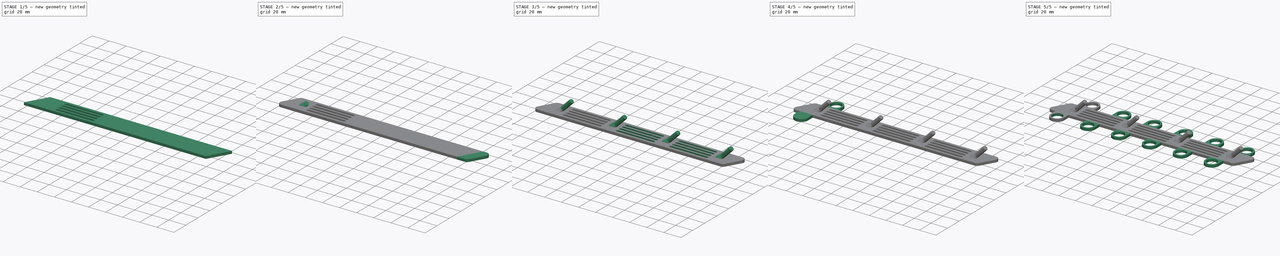
[diagram: build sequence overview — one tinted view per stage of 5, left to right]
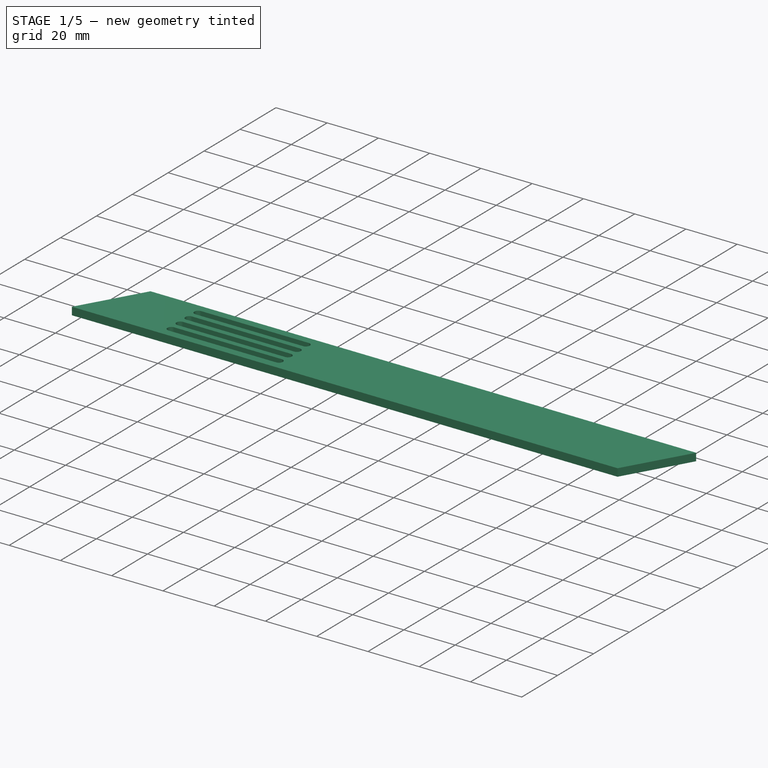
[diagram: stage 1 of 5 — iso view after this stage's code; geometry added in this stage tinted green]
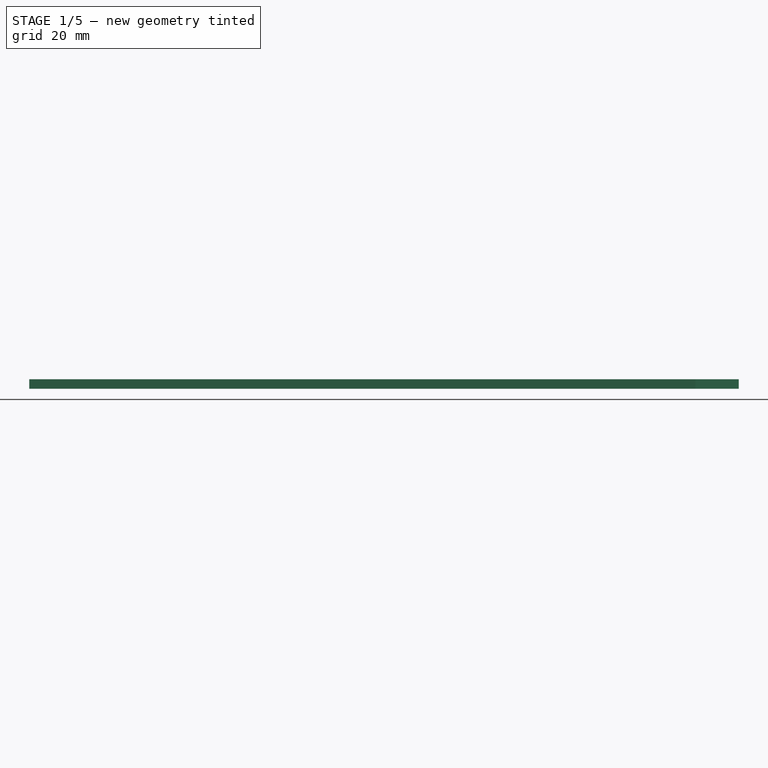
[diagram: stage 1 of 5 — front view after this stage's code; geometry added in this stage tinted green]
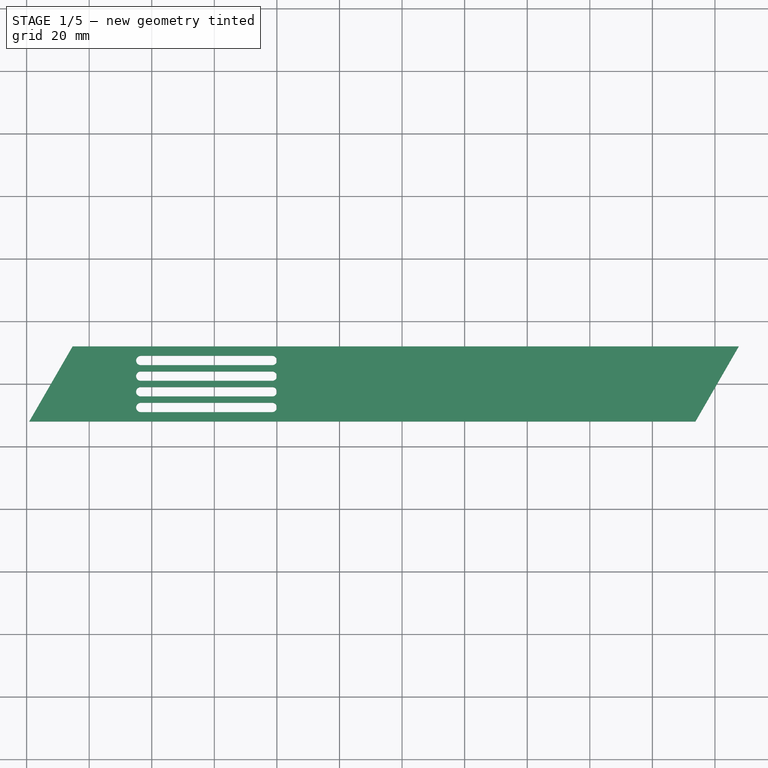
[diagram: stage 1 of 5 — top view after this stage's code; geometry added in this stage tinted green]
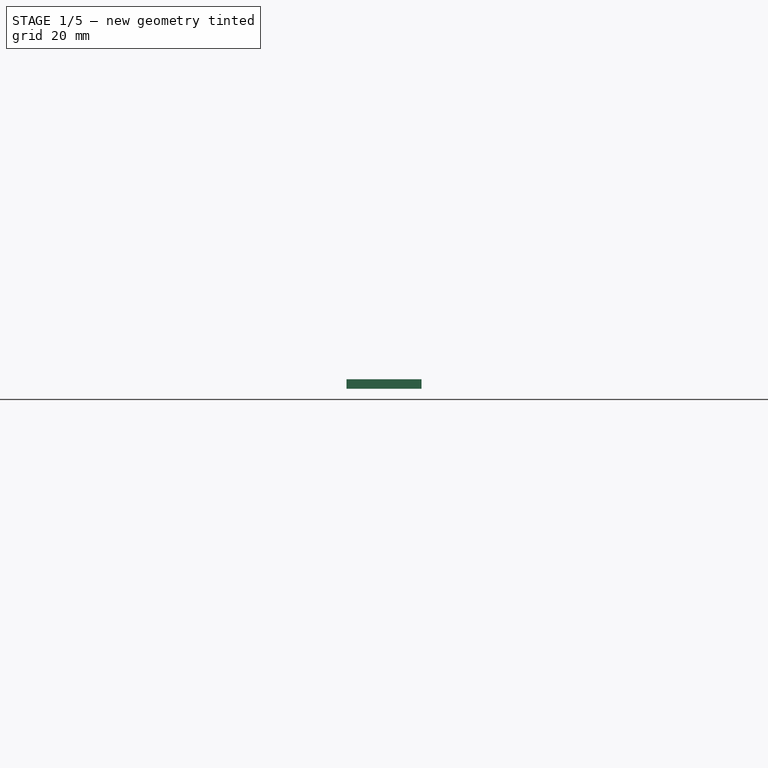
[diagram: stage 1 of 5 — right view after this stage's code; geometry added in this stage tinted green]
FCSTD DOCUMENT  (FreeCAD 0.19R24366 (Git))
Label: utensil-fridge-mount-v2
License: All rights reserved
LicenseURL: http://en.wikipedia.org/wiki/All_rights_reserved
objects: Sketcher::SketchObject×9, PartDesign::Pad×6, PartDesign::LinearPattern×4, PartDesign::Pocket×3, PartDesign::Fillet×2, Spreadsheet::Sheet×1, PartDesign::Plane×1, PartDesign::AdditiveLoft×1, PartDesign::Body×1, App::Part×1
note: 39 computed .brp shape members not serialized (recipe doc carries the construction recipe); baked Part::Feature solids carry a one-line shape summary decoded from their .brp

FEATURE [Spreadsheet::Sheet] Spreadsheet  label="$params"
  cells = A1=real; G1=computed; A2=peg_distance; B2(peg_distance)=60; C2=mount_angle; D2(mount_angle)=30; G2=mount_int_length; H2(mount_int_length)==(peg_distance + peg_diam / 2) * (peg_count - 1); A3=peg_diam; B3(peg_diam)=5; C3=mount_height; D3(mount_height)=24; G3=grill_hori_size; H3(grill_hori_size)==peg_distance * grill_percent; A4=peg_count; B4(peg_count)=4; C4=mount_thickness; D4(mount_thickness)=3; G4=magnet_full_diam; H4(magnet_full_diam)==magnet_diam + magnet_pad * 2; A5=peg_ext_size; B5(peg_ext_size)=15; C5=mount_hori_pad; D5(mount_hori_pad)=10; A6=peg_angle; B6(peg_angle)=45; A7=peg_base_diam; B7(peg_base_diam)=9; C7=magnet_diam; D7(magnet_diam)=12; C8=magnet_pad; D8(magnet_pad)=2; A9=grill_spacing; B9(grill_spacing)=2; C9=magnet_count; D9(magnet_count)=6; A10=grill_percent; B10(grill_percent)=0.7; A11=grill_cut_size; B11(grill_cut_size)=3; C11=magnet_surface_pad; D11(magnet_surface_pad)=0.4
FEATURE [Sketcher::SketchObject] Sketch  label="Main Body Sketch"
  FullyConstrained = true
  MapMode = 5
  Support = -> [XY_Plane001]
  expr: Constraints[8] = <<$params>>.mount_int_length
  expr: Constraints[9] = <<$params>>.mount_height
  expr: Constraints[18] = <<$params>>.mount_angle
  sketch-geometry (8):
    g0: LineSegment StartX=-93.75 StartY=12 StartZ=0 EndX=93.75 EndY=12 EndZ=0
    g1: LineSegment StartX=93.75 StartY=12 StartZ=0 EndX=93.75 EndY=-12 EndZ=0
    g2: LineSegment StartX=93.75 StartY=-12 StartZ=0 EndX=-93.75 EndY=-12 EndZ=0
    g3: LineSegment StartX=-93.75 StartY=-12 StartZ=0 EndX=-93.75 EndY=12 EndZ=0
    g4: LineSegment StartX=-93.75 StartY=12 StartZ=0 EndX=-107.606 EndY=-12 EndZ=0
    g5: LineSegment StartX=-107.606 StartY=-12 StartZ=0 EndX=-93.75 EndY=-12 EndZ=0
    g6: LineSegment StartX=93.75 StartY=-12 StartZ=0 EndX=107.606 EndY=12 EndZ=0
    g7: LineSegment StartX=107.606 StartY=12 StartZ=0 EndX=93.75 EndY=12 EndZ=0
  constraints (20):
    c: Coincident(g0,g1)
    c: Coincident(g1,g2)
    c: Coincident(g2,g3)
    c: Coincident(g3,g0)
    c: Horizontal(g2)
    c: Vertical(g1)
    c: Symmetric(g0,g2,g-1)
    c: Symmetric(g0,g0,g-2)
    c: DistanceX(g0,g0) = 187.5
    c: DistanceY(g3,g3) = 24
    c: Coincident(g4,g0)
    c: Coincident(g5,g4)
    c: Coincident(g5,g2)
    c: Horizontal(g5)
    c: Coincident(g6,g1)
    c: Coincident(g7,g6)
    c: Coincident(g7,g0)
    c: Horizontal(g7)
    c: Angle(g4,g3) = 0.523599
    c: Equal(g6,g4)
FEATURE [PartDesign::Pad] Pad  label="Main Body Pad"
  Direction = (1,1,1)
  Length = 3
  Length2 = 100
  Profile = -> Sketch
  Type = 0
  expr: Length = <<$params>>.mount_thickness
FEATURE [Sketcher::SketchObject] Sketch004  label="Prime Grill Cut Sketch"
  ExternalGeometry = -> [Sketch]
  FullyConstrained = true
  MapMode = 5
  Placement = pos=(0,0,3) rot=(0,0,1;0rad)
  Support = -> [Pad]
  expr: Constraints[77] = <<$params>>.grill_hori_size
  expr: Constraints[9] = <<$params>>.peg_distance + <<$params>>.peg_diam / 2
  expr: Constraints[50] = <<$params>>.grill_spacing
  expr: Constraints[53] = <<$params>>.grill_cut_size
  sketch-geometry (34):
    g0: LineSegment StartX=-93.75 StartY=12 StartZ=0 EndX=-31.25 EndY=12 EndZ=0
    g1: LineSegment StartX=-31.25 StartY=12 StartZ=0 EndX=-31.25 EndY=-12 EndZ=0
    g2: LineSegment StartX=-31.25 StartY=-12 StartZ=0 EndX=-93.75 EndY=-12 EndZ=0
    g3: LineSegment StartX=-93.75 StartY=-12 StartZ=0 EndX=-93.75 EndY=12 EndZ=0
    g4: ArcOfCircle CenterX=-83.5 CenterY=7.5 CenterZ=0 NormalX=0 NormalY=0 NormalZ=1 AngleXU=0 Radius=1.5 StartAngle=1.5708 EndAngle=4.71239
    g5: ArcOfCircle CenterX=-41.5 CenterY=7.5 CenterZ=0 NormalX=0 NormalY=0 NormalZ=1 AngleXU=0 Radius=1.5 StartAngle=4.71239 EndAngle=7.85398
    g6: LineSegment StartX=-83.5 StartY=6 StartZ=0 EndX=-41.5 EndY=6 EndZ=0
    g7: LineSegment StartX=-83.5 StartY=9 StartZ=0 EndX=-41.5 EndY=9 EndZ=0
    g8: ArcOfCircle CenterX=-83.5 CenterY=2.5 CenterZ=0 NormalX=0 NormalY=0 NormalZ=1 AngleXU=0 Radius=1.5 StartAngle=1.5708 EndAngle=4.71239
    g9: ArcOfCircle CenterX=-41.5 CenterY=2.5 CenterZ=0 NormalX=0 NormalY=0 NormalZ=1 AngleXU=0 Radius=1.5 StartAngle=4.71239 EndAngle=7.85398
    g10: LineSegment StartX=-83.5 StartY=1 StartZ=0 EndX=-41.5 EndY=1 EndZ=0
    g11: LineSegment StartX=-83.5 StartY=4 StartZ=0 EndX=-41.5 EndY=4 EndZ=0
    g12: ArcOfCircle CenterX=-83.5 CenterY=-2.5 CenterZ=0 NormalX=0 NormalY=0 NormalZ=1 AngleXU=0 Radius=1.5 StartAngle=1.5708 EndAngle=4.71239
    g13: ArcOfCircle CenterX=-41.5 CenterY=-2.5 CenterZ=0 NormalX=0 NormalY=0 NormalZ=1 AngleXU=0 Radius=1.5 StartAngle=4.71239 EndAngle=7.85398
    g14: LineSegment StartX=-83.5 StartY=-4 StartZ=0 EndX=-41.5 EndY=-4 EndZ=0
    g15: LineSegment StartX=-83.5 StartY=-1 StartZ=0 EndX=-41.5 EndY=-1 EndZ=0
    g16: ArcOfCircle CenterX=-83.5 CenterY=-7.5 CenterZ=0 NormalX=0 NormalY=0 NormalZ=1 AngleXU=0 Radius=1.5 StartAngle=1.5708 EndAngle=4.71239
    g17: ArcOfCircle CenterX=-41.5 CenterY=-7.5 CenterZ=0 NormalX=0 NormalY=0 NormalZ=1 AngleXU=0 Radius=1.5 StartAngle=4.71239 EndAngle=7.85398
    g18: LineSegment StartX=-83.5 StartY=-9 StartZ=0 EndX=-41.5 EndY=-9 EndZ=0
    g19: LineSegment StartX=-83.5 StartY=-6 StartZ=0 EndX=-41.5 EndY=-6 EndZ=0
    g20: LineSegment StartX=-83.5 StartY=-6 StartZ=0 EndX=-83.5 EndY=-4 EndZ=0
    g21: LineSegment StartX=-83.5 StartY=-1 StartZ=0 EndX=-83.5 EndY=1 EndZ=0
    g22: LineSegment StartX=-83.5 StartY=4 StartZ=0 EndX=-83.5 EndY=6 EndZ=0
    g23: LineSegment StartX=-41.5 StartY=4 StartZ=0 EndX=-41.5 EndY=6 EndZ=0
    g24: LineSegment StartX=-41.5 StartY=-1 StartZ=0 EndX=-41.5 EndY=1 EndZ=0
    g25: LineSegment StartX=-41.5 StartY=-6 StartZ=0 EndX=-41.5 EndY=-4 EndZ=0
    g26: LineSegment StartX=-41.5 StartY=4 StartZ=0 EndX=-41.5 EndY=1 EndZ=0
    g27: LineSegment StartX=-41.5 StartY=-6 StartZ=0 EndX=-41.5 EndY=-9 EndZ=0
    g28: LineSegment StartX=-41.5 StartY=6 StartZ=0 EndX=-41.5 EndY=9 EndZ=0
    g29: LineSegment StartX=-41.5 StartY=-1 StartZ=0 EndX=-41.5 EndY=-4 EndZ=0
    g30: LineSegment StartX=-83.5 StartY=9 StartZ=0 EndX=-62.5 EndY=0 EndZ=0
    g31: LineSegment StartX=-62.5 StartY=8e-16 StartZ=0 EndX=-41.5 EndY=-9 EndZ=0
    g32: LineSegment StartX=-93.75 StartY=-12 StartZ=0 EndX=-62.5 EndY=0 EndZ=0
    g33: LineSegment StartX=-62.5 StartY=8e-16 StartZ=0 EndX=-31.25 EndY=12 EndZ=0
  constraints (78):
    c: Coincident(g0,g1)
    c: Coincident(g1,g2)
    c: Coincident(g2,g3)
    c: Coincident(g3,g0)
    c: Horizontal(g0)
    c: Horizontal(g2)
    c: Vertical(g1)
    c: Coincident(g0,g-3)
    c: Coincident(g2,g-4)
    c: DistanceX(g0,g0) = 62.5
    c: Tangent(g4,g7) = 1.5708
    c: Tangent(g4,g6) = -1.5708
    c: Tangent(g6,g5) = -1.5708
    c: Tangent(g7,g5) = 1.5708
    c: Horizontal(g6)
    c: Equal(g4,g5)
    c: Tangent(g8,g11) = 1.5708
    c: Tangent(g8,g10) = -1.5708
    c: Tangent(g10,g9) = -1.5708
    c: Tangent(g11,g9) = 1.5708
    c: Horizontal(g10)
    c: Equal(g8,g9)
    c: Tangent(g12,g15) = 1.5708
    c: Tangent(g12,g14) = -1.5708
    c: Tangent(g14,g13) = -1.5708
    c: Tangent(g15,g13) = 1.5708
    c: Horizontal(g14)
    c: Equal(g12,g13)
    c: Tangent(g16,g19) = 1.5708
    c: Tangent(g16,g18) = -1.5708
    c: Tangent(g18,g17) = -1.5708
    c: Tangent(g19,g17) = 1.5708
    c: Horizontal(g18)
    c: Equal(g16,g17)
    c: Coincident(g20,g16)
    c: Coincident(g20,g12)
    c: Vertical(g20)
    c: Coincident(g21,g12)
    c: Coincident(g21,g8)
    c: Coincident(g22,g8)
    c: Coincident(g22,g4)
    c: Vertical(g22)
    c: Coincident(g23,g9)
    c: Coincident(g23,g5)
    c: Coincident(g24,g13)
    c: Coincident(g24,g9)
    c: Vertical(g24)
    c: Coincident(g25,g17)
    c: Coincident(g25,g13)
    c: Vertical(g25)
    c: DistanceY(g21,g21) = 2
    c: Equal(g22,g21)
    c: Equal(g21,g20)
    c: DistanceY(g5,g5) = 3
    c: Vertical(g23)
    c: Coincident(g26,g9)
    c: Coincident(g26,g9)
    c: Coincident(g27,g17)
    c: Coincident(g27,g17)
    c: Coincident(g28,g5)
    c: Coincident(g28,g5)
    c: Equal(g28,g26)
    c: Equal(g26,g27)
    c: Coincident(g29,g13)
    c: Coincident(g29,g13)
    c: Equal(g28,g29)
    c: Symmetric(g12,g8,g-1)
    c: Coincident(g30,g4)
    c: Coincident(g31,g30)
    c: Coincident(g31,g17)
    c: Equal(g31,g30)
    c: Parallel(g31,g30)
    c: Coincident(g32,g2)
    c: Coincident(g33,g32)
    c: Coincident(g33,g0)
    c: Equal(g32,g33)
    c: Coincident(g32,g30)
    c: DistanceX(g12,g13) = 42
FEATURE [PartDesign::Pocket] Pocket  label="Prime Grill Cut Pocket"
  BaseFeature = -> Pad
  Length = 5
  Length2 = 100
  Profile = -> Sketch004
  Type = 1
FEATURE [PartDesign::Pad] Pad001  label="Main Body End Pad 001"
  BaseFeature = -> Pocket
  Direction = (1,0,0)
  Length = 10
  Length2 = 100
  Profile = -> Pad [Face1]
  Reversed = true
  Type = 0
  UseCustomVector = true
  expr: Length = <<$params>>.mount_hori_pad
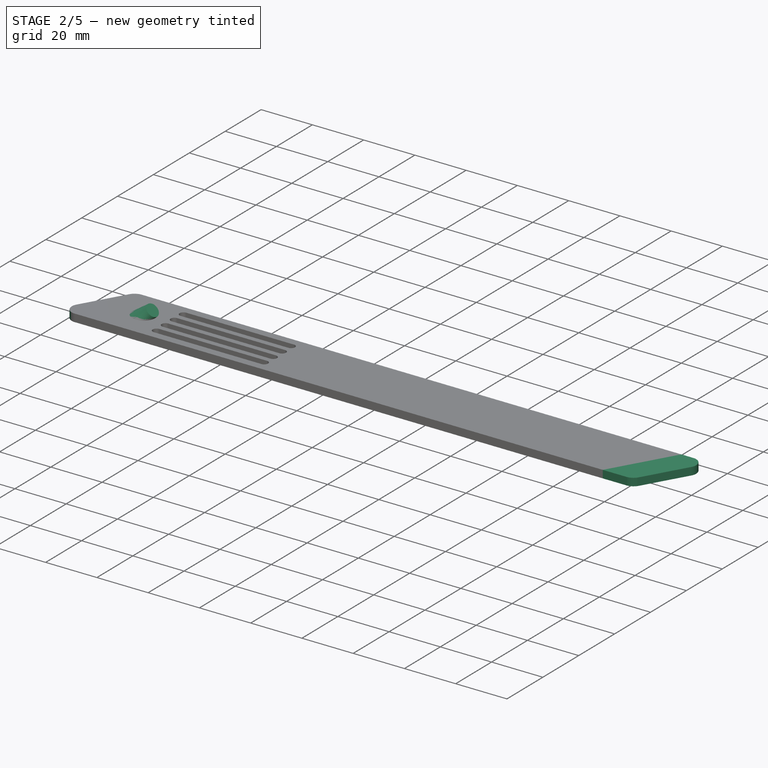
[diagram: stage 2 of 5 — iso view after this stage's code; geometry added in this stage tinted green]
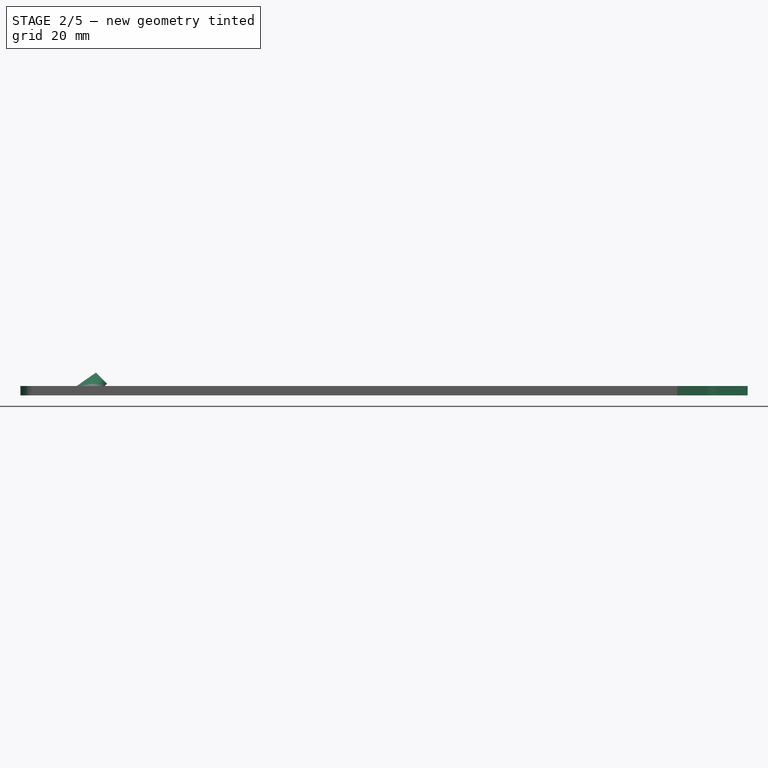
[diagram: stage 2 of 5 — front view after this stage's code; geometry added in this stage tinted green]
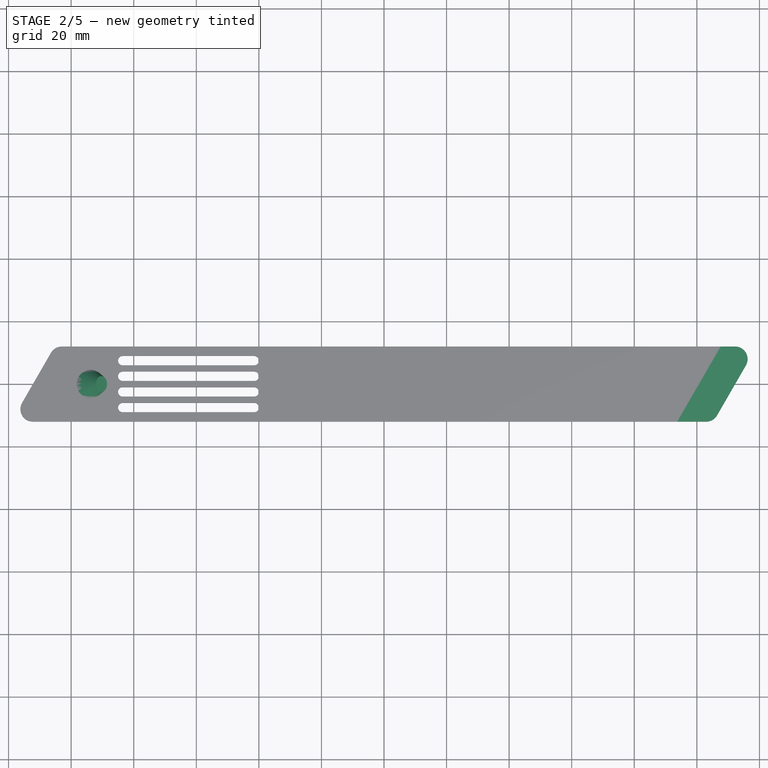
[diagram: stage 2 of 5 — top view after this stage's code; geometry added in this stage tinted green]
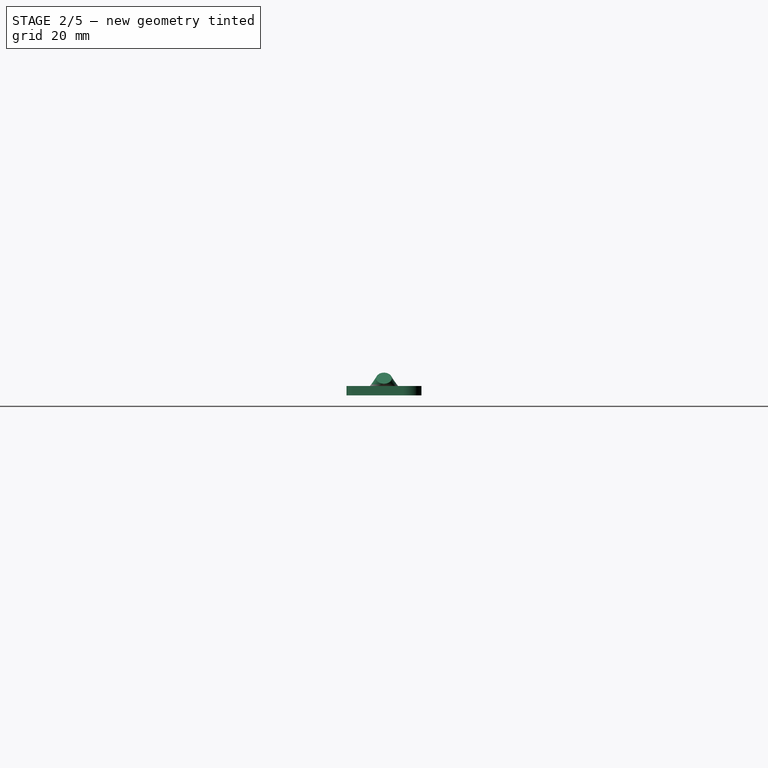
[diagram: stage 2 of 5 — right view after this stage's code; geometry added in this stage tinted green]
FEATURE [PartDesign::Pad] Pad002  label="Main Body End Pad 002"
  BaseFeature = -> Pad001
  Direction = (1,0,0)
  Length = 10
  Length2 = 100
  Profile = -> Pad001 [Face9]
  Type = 0
  UseCustomVector = true
  expr: Length = <<$params>>.mount_hori_pad
FEATURE [PartDesign::Fillet] Fillet  label="Main Body End Pad Fillet"
  Base = -> Pad002 [Edge7,Edge55,Edge58,Edge82]
  BaseFeature = -> Pad002
  Radius = 4
  SupportTransform = false
FEATURE [Sketcher::SketchObject] Sketch001  label="Prime Peg Base Sketch"
  ExternalGeometry = -> [Sketch]
  FullyConstrained = true
  MapMode = 5
  Placement = pos=(0,0,3) rot=(0,0,1;0rad)
  Support = -> [Fillet]
  expr: Constraints[12] = <<$params>>.peg_base_diam
  sketch-geometry (5):
    g0: LineSegment StartX=-93.75 StartY=12 StartZ=0 EndX=93.75 EndY=12 EndZ=0
    g1: LineSegment StartX=93.75 StartY=12 StartZ=0 EndX=93.75 EndY=-12 EndZ=0
    g2: LineSegment StartX=93.75 StartY=-12 StartZ=0 EndX=-93.75 EndY=-12 EndZ=0
    g3: LineSegment StartX=-93.75 StartY=-12 StartZ=0 EndX=-93.75 EndY=12 EndZ=0
    g4: Circle CenterX=-93.75 CenterY=0 CenterZ=0 NormalX=0 NormalY=0 NormalZ=1 AngleXU=0 Radius=4.5
  constraints (13):
    c: Coincident(g0,g1)
    c: Coincident(g1,g2)
    c: Coincident(g2,g3)
    c: Coincident(g3,g0)
    c: Horizontal(g0)
    c: Horizontal(g2)
    c: Vertical(g1)
    c: Vertical(g3)
    c: Coincident(g0,g-3)
    c: Coincident(g1,g-4)
    c: PointOnObject(g4,g-1)
    c: PointOnObject(g4,g3)
    c: Diameter(g4) = 9
FEATURE [Sketcher::SketchObject] Sketch002  label="Prime Peg Base Mount Point"
  ExternalGeometry = -> [Sketch001]
  FullyConstrained = true
  MapMode = 5
  Placement = pos=(0,0,0) rot=(1,0,0;1.5708rad)
  Support = -> [XZ_Plane]
  expr: Constraints[3] = <<$params>>.peg_angle
  expr: Constraints[4] = <<$params>>.peg_diam
  sketch-geometry (3):
    g0: LineSegment StartX=-89.25 StartY=3 StartZ=0 EndX=-92.7855 EndY=6.53553 EndZ=0
    g1: LineSegment StartX=-92.7855 StartY=6.53553 StartZ=0 EndX=-98.25 EndY=3 EndZ=0
    g2: LineSegment StartX=-89.25 StartY=3 StartZ=0 EndX=-98.25 EndY=3 EndZ=0
  constraints (7):
    c: Coincident(g0,g-3)
    c: Coincident(g1,g0)
    c: Coincident(g1,g-3)
    c: Angle(g0,g-3) = 0.785398
    c: Distance(g0) = 5
    c: Coincident(g2,g0)
    c: Coincident(g2,g1)
FEATURE [PartDesign::Plane] DatumPlane
  Length = 20
  MapMode = 50
  Placement = pos=(-92.7855,-1.5e-15,6.53553) rot=(0,1,0;0.785398rad)
  ResizeMode = 1
  Support = -> [Sketch002]
  Width = 20
FEATURE [Sketcher::SketchObject] Sketch003  label="Prime Peg Base Mount Base"
  AttachmentOffset = pos=(0,0,1) rot=(0,0,1;0rad)
  ExternalGeometry = -> [Sketch001]
  FullyConstrained = true
  MapMode = 5
  Placement = pos=(-92.0784,-1.3e-15,7.24264) rot=(0,1,0;0.785398rad)
  Support = -> [DatumPlane]
  sketch-geometry (1):
    g0: Circle CenterX=2.5 CenterY=0 CenterZ=0 NormalX=0 NormalY=0 NormalZ=1 AngleXU=0 Radius=2.5
  constraints (3):
    c: PointOnObject(g0,g-1)
    c: PointOnObject(g-3,g0)
    c: PointOnObject(g-1,g0)
FEATURE [PartDesign::AdditiveLoft] AdditiveLoft  label="Prime Peg Mounting Loft"
  BaseFeature = -> Fillet
  Closed = false
  Profile = -> Sketch001
  Ruled = false
  Sections = -> [Sketch003]
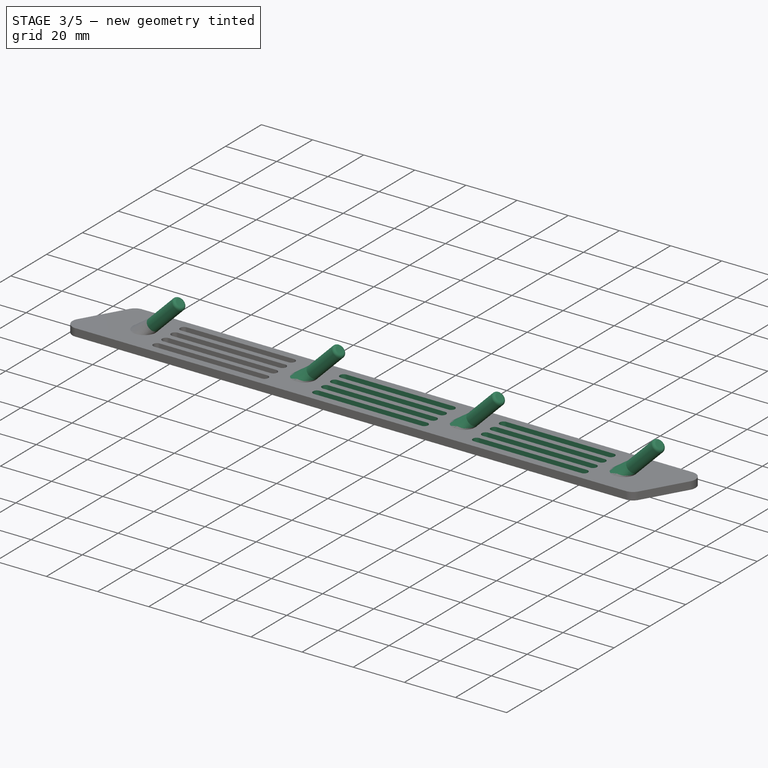
[diagram: stage 3 of 5 — iso view after this stage's code; geometry added in this stage tinted green]
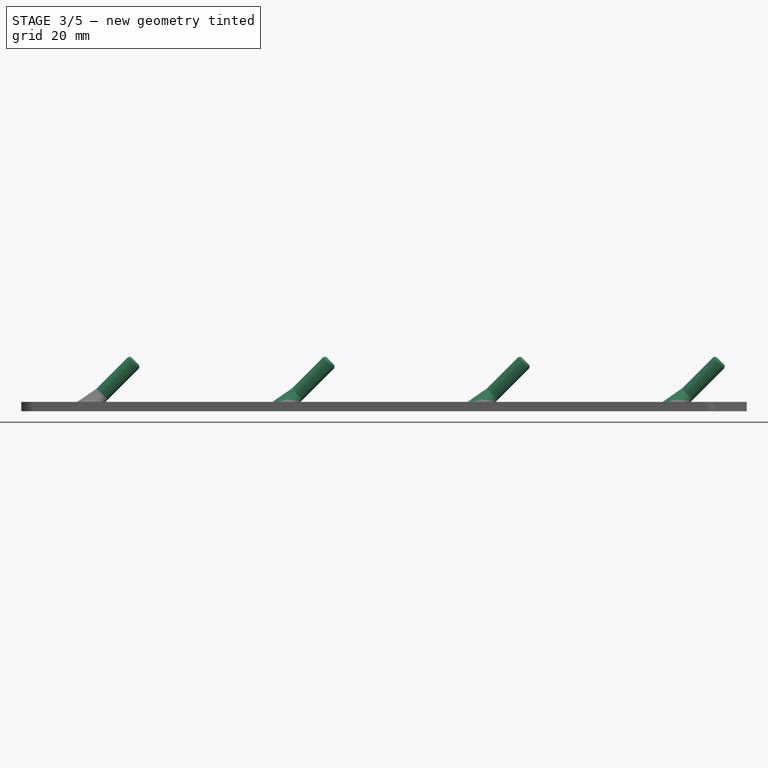
[diagram: stage 3 of 5 — front view after this stage's code; geometry added in this stage tinted green]
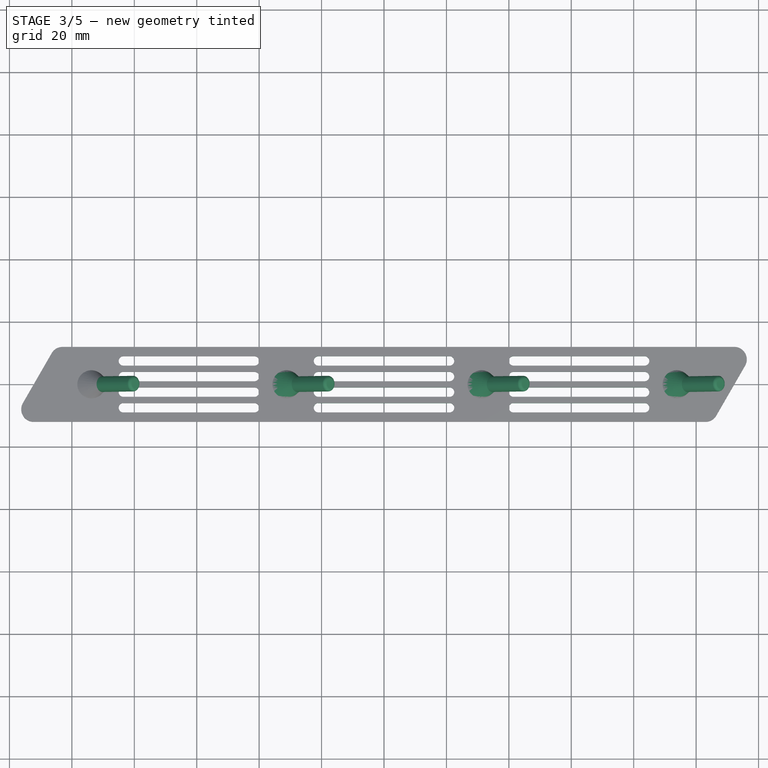
[diagram: stage 3 of 5 — top view after this stage's code; geometry added in this stage tinted green]
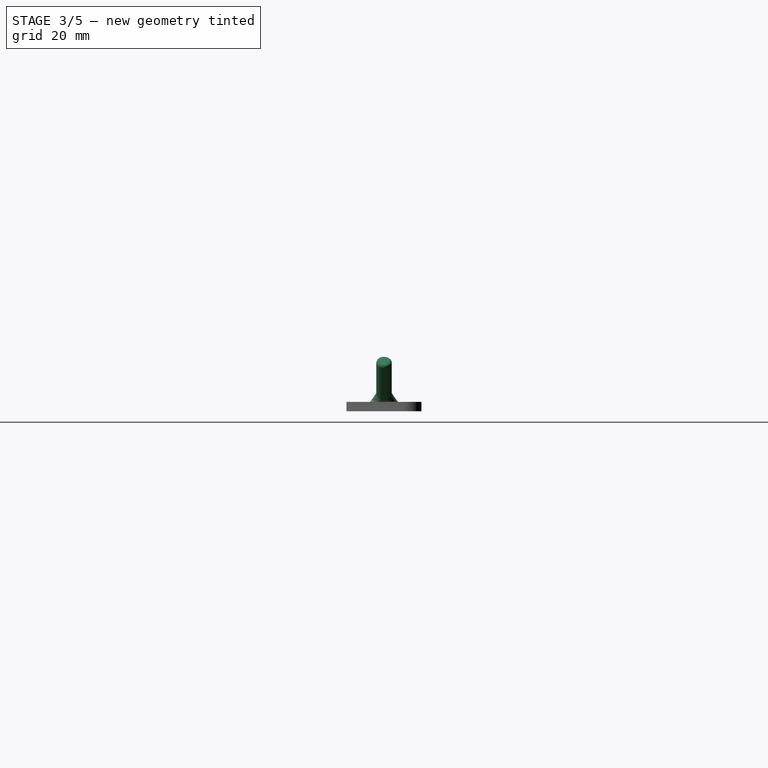
[diagram: stage 3 of 5 — right view after this stage's code; geometry added in this stage tinted green]
FEATURE [PartDesign::Pad] Pad003  label="Prime Peg Ext"
  BaseFeature = -> AdditiveLoft
  Direction = (1,1,1)
  Length = 15
  Length2 = 100
  Profile = -> AdditiveLoft [Face38]
  Type = 0
  expr: Length = <<$params>>.peg_ext_size
FEATURE [PartDesign::Fillet] Fillet001  label="Prime Peg End Fillet"
  Base = -> Pad003 [Face39]
  BaseFeature = -> Pad003
  Radius = 1
  SupportTransform = false
FEATURE [PartDesign::LinearPattern] LinearPattern  label="Prime Peg Repeat"
  BaseFeature = -> Fillet001
  Direction = -> Sketch001 [H_Axis]
  Length = 187.5
  Occurrences = 4
  Originals = -> [AdditiveLoft,Pad003,Fillet001]
  expr: Occurrences = <<$params>>.peg_count
  expr: Length = <<$params>>.mount_int_length
FEATURE [PartDesign::LinearPattern] LinearPattern001  label="Grill Repeat Pattern"
  BaseFeature = -> LinearPattern
  Direction = -> Sketch004 [H_Axis]
  Length = 125
  Occurrences = 3
  Originals = -> [Pocket]
  expr: Occurrences = <<$params>>.peg_count - 1
  expr: Length = (<<$params>>.peg_distance + <<$params>>.peg_diam / 2) * (<<$params>>.peg_count - 2)
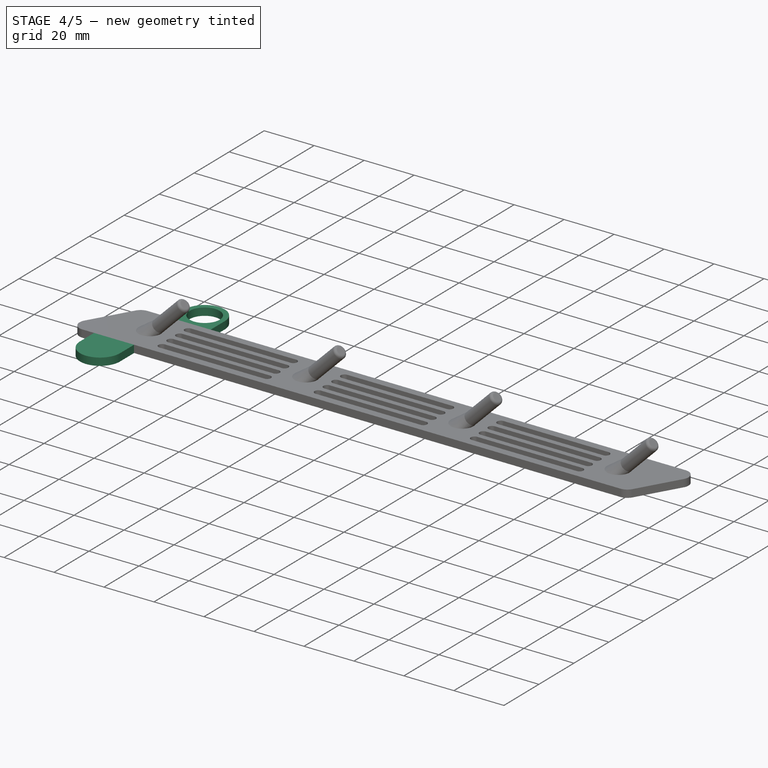
[diagram: stage 4 of 5 — iso view after this stage's code; geometry added in this stage tinted green]
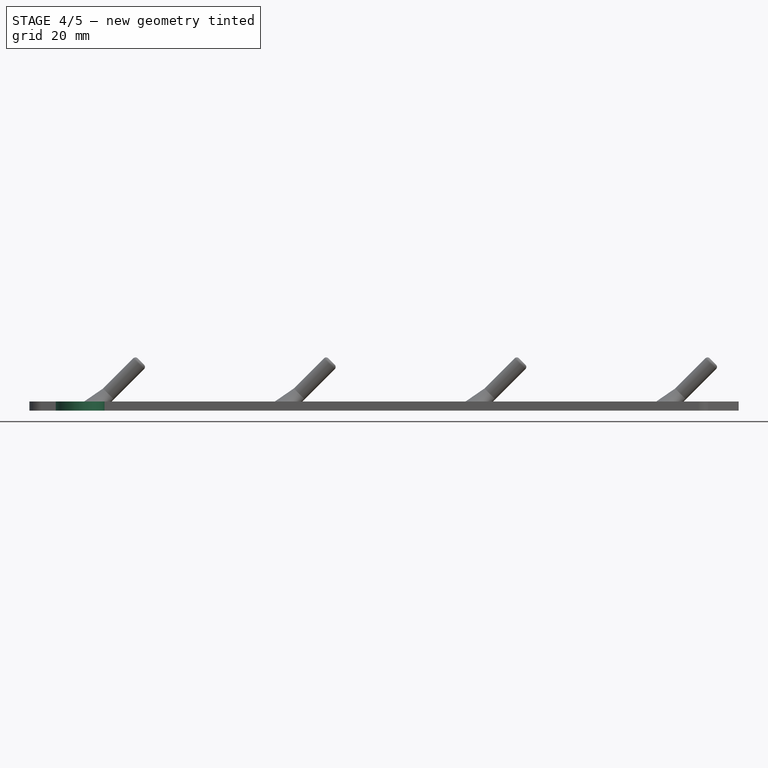
[diagram: stage 4 of 5 — front view after this stage's code; geometry added in this stage tinted green]
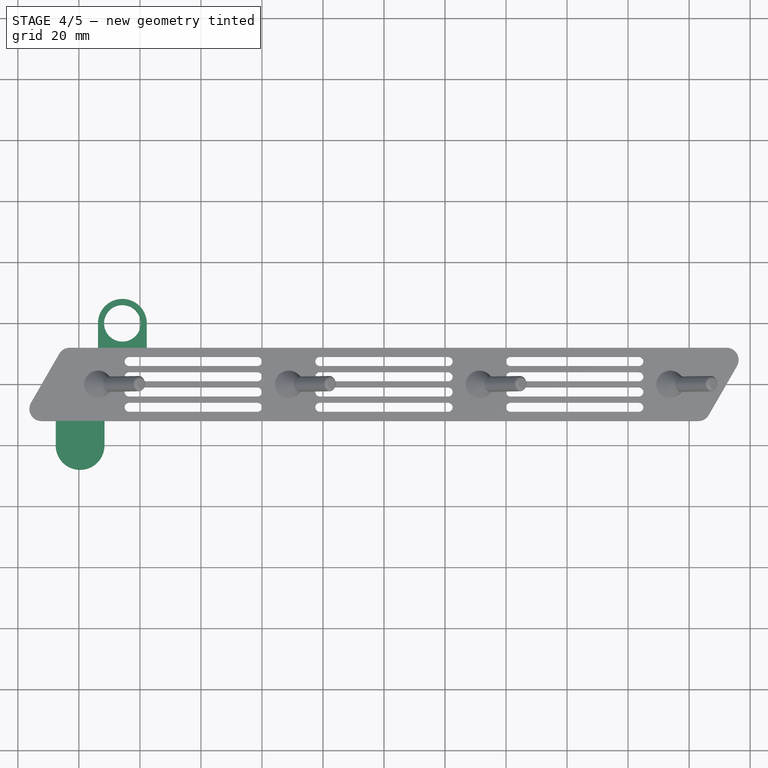
[diagram: stage 4 of 5 — top view after this stage's code; geometry added in this stage tinted green]
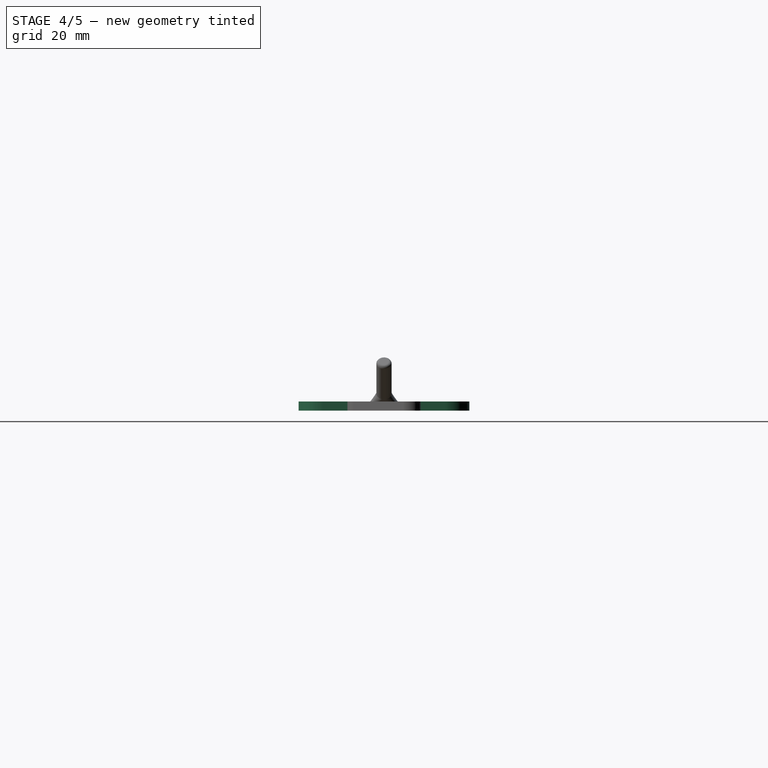
[diagram: stage 4 of 5 — right view after this stage's code; geometry added in this stage tinted green]
FEATURE [Sketcher::SketchObject] Sketch005  label="Prime Top Magnet Holder Sketch"
  ExternalGeometry = -> [Sketch]
  FullyConstrained = true
  MapMode = 5
  Support = -> [XY_Plane]
  expr: Constraints[10] = <<$params>>.magnet_full_diam
  expr: Constraints[25] = <<$params>>.magnet_full_diam / 2
  expr: Constraints[26] = 0
  sketch-geometry (11):
    g0: LineSegment StartX=-93.75 StartY=12 StartZ=0 EndX=93.75 EndY=12 EndZ=0
    g1: LineSegment StartX=93.75 StartY=12 StartZ=0 EndX=93.75 EndY=-12 EndZ=0
    g2: LineSegment StartX=93.75 StartY=-12 StartZ=0 EndX=-93.75 EndY=-12 EndZ=0
    g3: LineSegment StartX=-93.75 StartY=-12 StartZ=0 EndX=-93.75 EndY=12 EndZ=0
    g4: ArcOfCircle CenterX=-85.75 CenterY=20 CenterZ=0 NormalX=0 NormalY=0 NormalZ=1 AngleXU=0 Radius=8 StartAngle=4.14e-14 EndAngle=3.14159
    g5: LineSegment StartX=-93.75 StartY=20 StartZ=0 EndX=-93.75 EndY=12 EndZ=0
    g6: LineSegment StartX=-77.75 StartY=20 StartZ=0 EndX=-77.75 EndY=12 EndZ=0
    g7: LineSegment StartX=-93.75 StartY=20 StartZ=0 EndX=-77.75 EndY=20 EndZ=0
    g8: GeomPoint X=-85.75 Y=20 Z=0
    g9: LineSegment StartX=-85.75 StartY=20 StartZ=0 EndX=-85.75 EndY=12 EndZ=0
    g10: LineSegment StartX=-93.75 StartY=12 StartZ=0 EndX=-77.75 EndY=12 EndZ=0
  constraints (29):
    c: Coincident(g0,g1)
    c: Coincident(g1,g2)
    c: Coincident(g2,g3)
    c: Coincident(g3,g0)
    c: Horizontal(g0)
    c: Horizontal(g2)
    c: Vertical(g1)
    c: Vertical(g3)
    c: Coincident(g0,g-3)
    c: Coincident(g1,g-4)
    c: Diameter(g4) = 16
    c: PointOnObject(g5,g0)
    c: Vertical(g5)
    c: PointOnObject(g6,g0)
    c: Vertical(g6)
    c: Coincident(g7,g5)
    c: Coincident(g7,g6)
    c: Horizontal(g7)
    c: PointOnObject(g8,g7)
    c: Coincident(g8,g4)
    c: Coincident(g4,g5)
    c: Coincident(g4,g6)
    c: Coincident(g9,g4)
    c: PointOnObject(g9,g0)
    c: Vertical(g9)
    c: DistanceY(g9,g9) = 8
    c: DistanceX(g0,g5) = 0
    c: Coincident(g10,g5)
    c: Coincident(g10,g6)
FEATURE [PartDesign::Pad] Pad004  label="Prime Top Magnet Holder Pad"
  BaseFeature = -> LinearPattern001
  Direction = (1,1,1)
  Length = 3
  Length2 = 100
  Profile = -> Sketch005
  Type = 0
  expr: Length = <<$params>>.mount_thickness
FEATURE [Sketcher::SketchObject] Sketch006  label="Prime Top Magnet Holder Cutout Sketch"
  ExternalGeometry = -> [Sketch005]
  FullyConstrained = true
  MapMode = 5
  Placement = pos=(0,0,3) rot=(0,0,1;0rad)
  Support = -> [Pad004]
  expr: Constraints[1] = <<$params>>.magnet_diam
  sketch-geometry (1):
    g0: Circle CenterX=-85.75 CenterY=20 CenterZ=0 NormalX=0 NormalY=0 NormalZ=1 AngleXU=0 Radius=6
  constraints (2):
    c: Coincident(g0,g-3)
    c: Diameter(g0) = 12
FEATURE [PartDesign::Pocket] Pocket001  label="Prime Top Magnet Holder Cutout"
  BaseFeature = -> Pad004
  Length = 2.6
  Length2 = 100
  Profile = -> Sketch006
  Type = 1
  expr: Length = <<$params>>.mount_thickness - <<$params>>.magnet_surface_pad
FEATURE [Sketcher::SketchObject] Sketch007  label="Prime Bottom Magnet Holder Sketch"
  ExternalGeometry = -> [Sketch005,Sketch]
  FullyConstrained = true
  MapMode = 5
  Support = -> [XY_Plane]
  sketch-geometry (7):
    g0: ArcOfCircle CenterX=-99.6064 CenterY=-20 CenterZ=0 NormalX=0 NormalY=0 NormalZ=1 AngleXU=0 Radius=8 StartAngle=3.14159 EndAngle=6.28319
    g1: LineSegment StartX=-107.606 StartY=-20 StartZ=0 EndX=-91.6064 EndY=-20 EndZ=0
    g2: GeomPoint X=-99.6064 Y=-20 Z=0
    g3: LineSegment StartX=-107.606 StartY=-20 StartZ=0 EndX=-107.606 EndY=-12 EndZ=0
    g4: LineSegment StartX=-91.6064 StartY=-20 StartZ=0 EndX=-91.6064 EndY=-12 EndZ=0
    g5: LineSegment StartX=-107.606 StartY=-12 StartZ=0 EndX=-91.6064 EndY=-12 EndZ=0
    g6: LineSegment StartX=-93.75 StartY=20 StartZ=0 EndX=-77.75 EndY=20 EndZ=0
  constraints (17):
    c: Horizontal(g1)
    c: PointOnObject(g2,g1)
    c: Coincident(g0,g2)
    c: Coincident(g3,g1)
    c: Coincident(g3,g-5)
    c: Vertical(g3)
    c: Coincident(g4,g1)
    c: Vertical(g4)
    c: Coincident(g5,g3)
    c: Coincident(g5,g4)
    c: Horizontal(g5)
    c: Coincident(g0,g1)
    c: Coincident(g0,g1)
    c: Coincident(g6,g-6)
    c: Coincident(g6,g-4)
    c: Equal(g1,g6)
    c: Equal(g4,g-4)
FEATURE [PartDesign::Pad] Pad005  label="Prime Bottom Magnet Holder Pad"
  BaseFeature = -> Pocket001
  Direction = (1,1,1)
  Length = 3
  Length2 = 100
  Profile = -> Sketch007
  Type = 0
  expr: Length = <<$params>>.mount_thickness
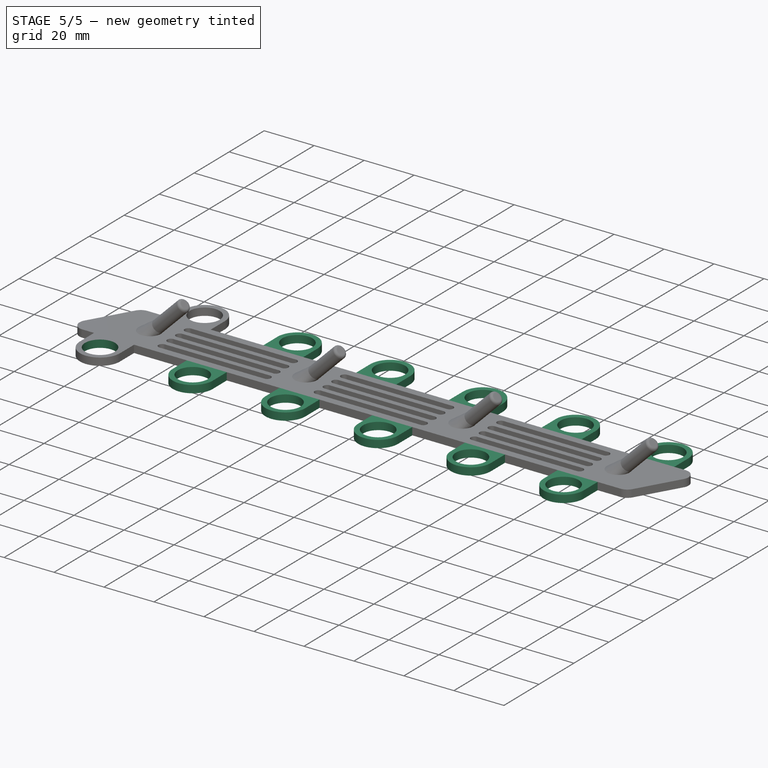
[diagram: stage 5 of 5 — iso view after this stage's code; geometry added in this stage tinted green]
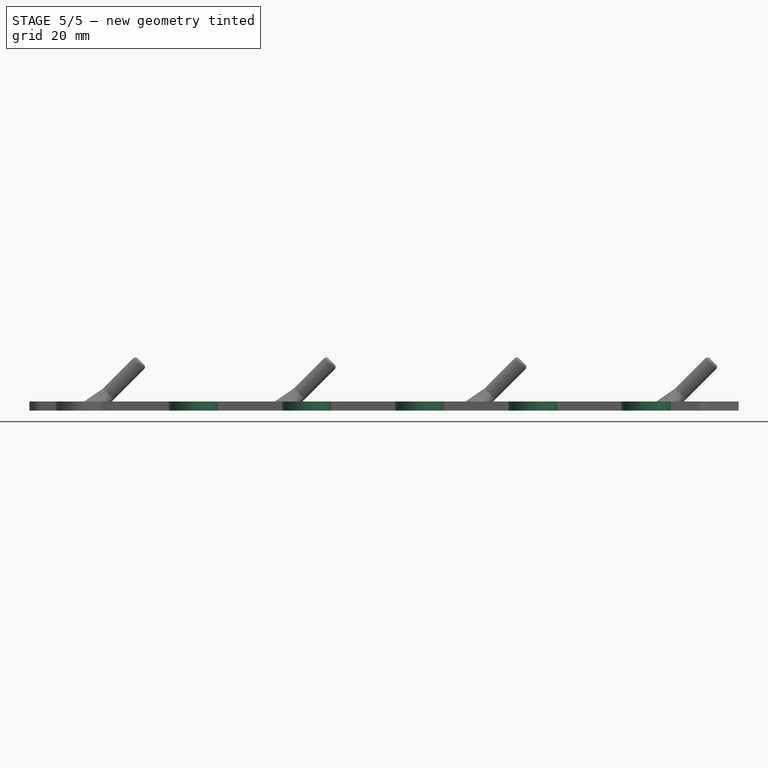
[diagram: stage 5 of 5 — front view after this stage's code; geometry added in this stage tinted green]
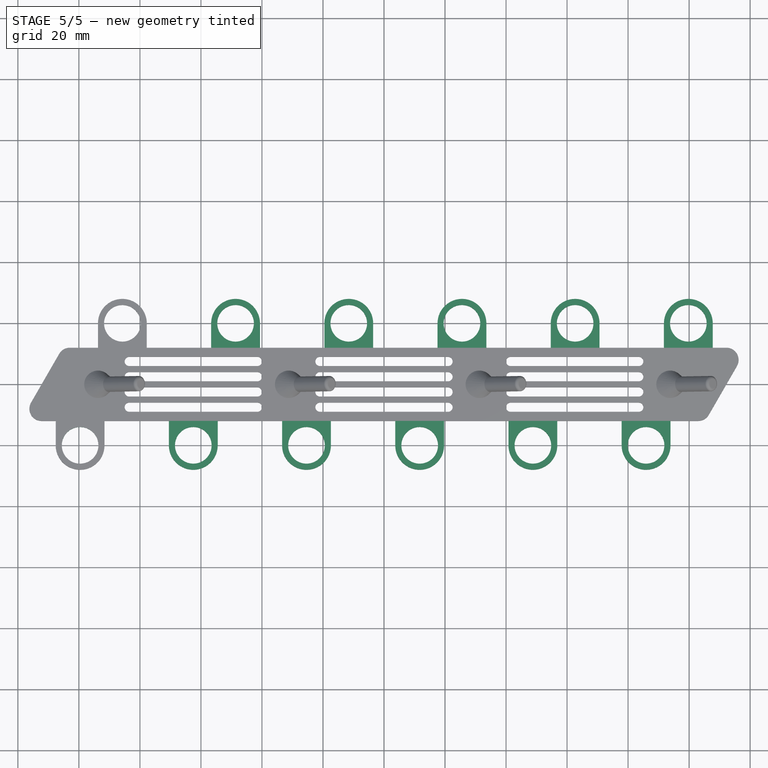
[diagram: stage 5 of 5 — top view after this stage's code; geometry added in this stage tinted green]
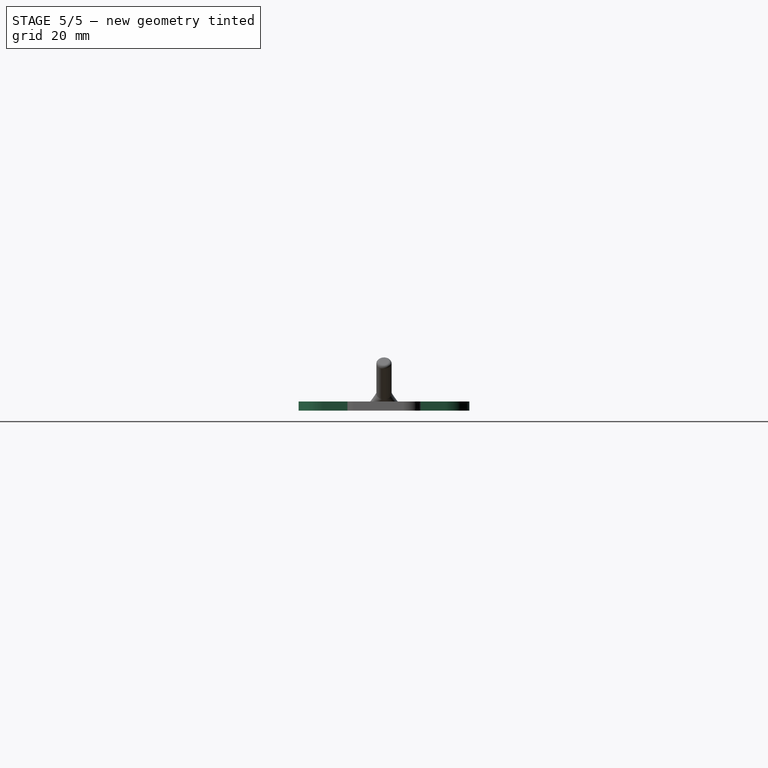
[diagram: stage 5 of 5 — right view after this stage's code; geometry added in this stage tinted green]
FEATURE [Sketcher::SketchObject] Sketch008  label="Prime Bottom Magnet Holder Cutout Sketch"
  ExternalGeometry = -> [Sketch007]
  FullyConstrained = true
  MapMode = 5
  Placement = pos=(0,0,3) rot=(0,0,1;0rad)
  Support = -> [Pad005]
  expr: Constraints[1] = <<$params>>.magnet_diam
  sketch-geometry (1):
    g0: Circle CenterX=-99.6064 CenterY=-20 CenterZ=0 NormalX=0 NormalY=0 NormalZ=1 AngleXU=0 Radius=6
  constraints (2):
    c: Coincident(g0,g-3)
    c: Diameter(g0) = 12
FEATURE [PartDesign::Pocket] Pocket002  label="Prime Bottom Magnet Holder Cutout"
  BaseFeature = -> Pad005
  Length = 2.6
  Length2 = 100
  Profile = -> Sketch008
  Type = 1
  expr: Length = <<$params>>.mount_thickness - <<$params>>.magnet_surface_pad
FEATURE [PartDesign::LinearPattern] LinearPattern002  label="Top Magnet Repeater"
  BaseFeature = -> Pocket002
  Direction = -> Sketch005 [H_Axis]
  Length = 185.5
  Occurrences = 6
  Originals = -> [Pad004,Pocket001]
  expr: Occurrences = <<$params>>.magnet_count
  expr: Length = <<$params>>.mount_int_length - <<$params>>.magnet_pad
FEATURE [PartDesign::LinearPattern] LinearPattern003
  BaseFeature = -> LinearPattern002
  Direction = -> Sketch007 [H_Axis]
  Length = 185.5
  Occurrences = 6
  Originals = -> [Pad005,Pocket002]
  expr: Occurrences = <<$params>>.magnet_count
  expr: Length = <<$params>>.mount_int_length - <<$params>>.magnet_pad
FEATURE [PartDesign::Body] Body  label="Main Mount Body"
  Group = -> [Sketch,Pad,Sketch004,Pocket,Pad001,Pad002,Fillet,Sketch001,Sketch002,DatumPlane,Sketch003,AdditiveLoft,Pad003,Fillet001,LinearPattern,LinearPattern001,Sketch005,Pad004,Sketch006,Pocket001,Sketch007,Pad005,Sketch008,Pocket002,LinearPattern002,LinearPattern003]
  Origin = -> Origin001
  Tip = -> LinearPattern003
FEATURE [App::Part] Part  label="Main Mount"
  Group = -> [Body]
  Origin = -> Origin
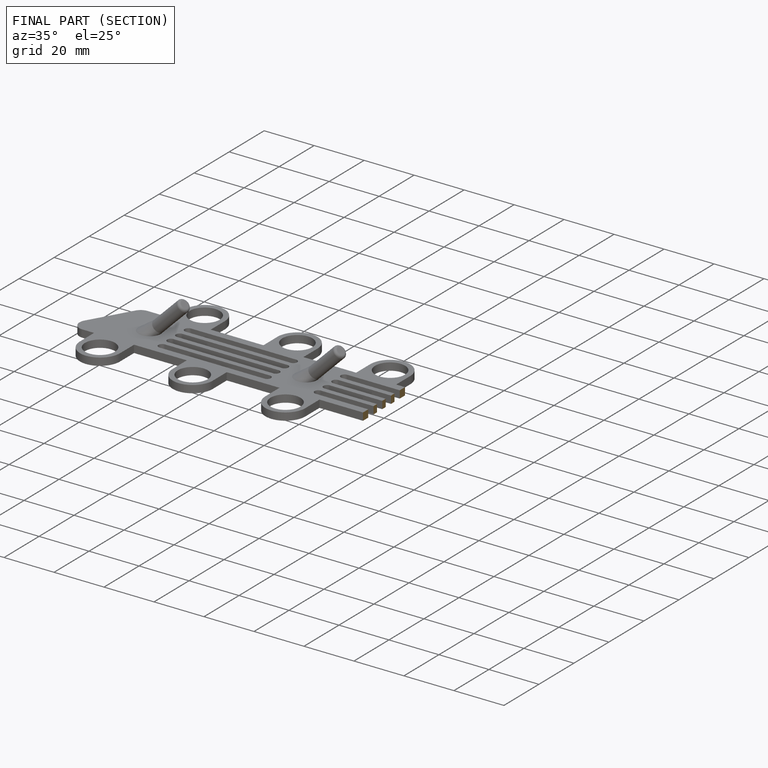
[diagram: finished part — half-section view (interior)]
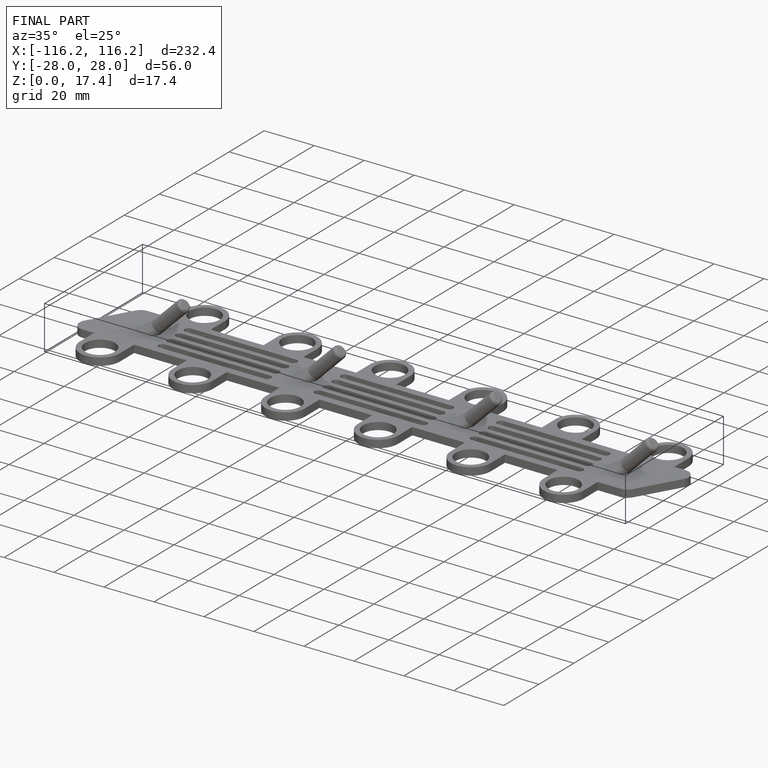
[diagram: finished part — iso view with bounding-box wireframe]
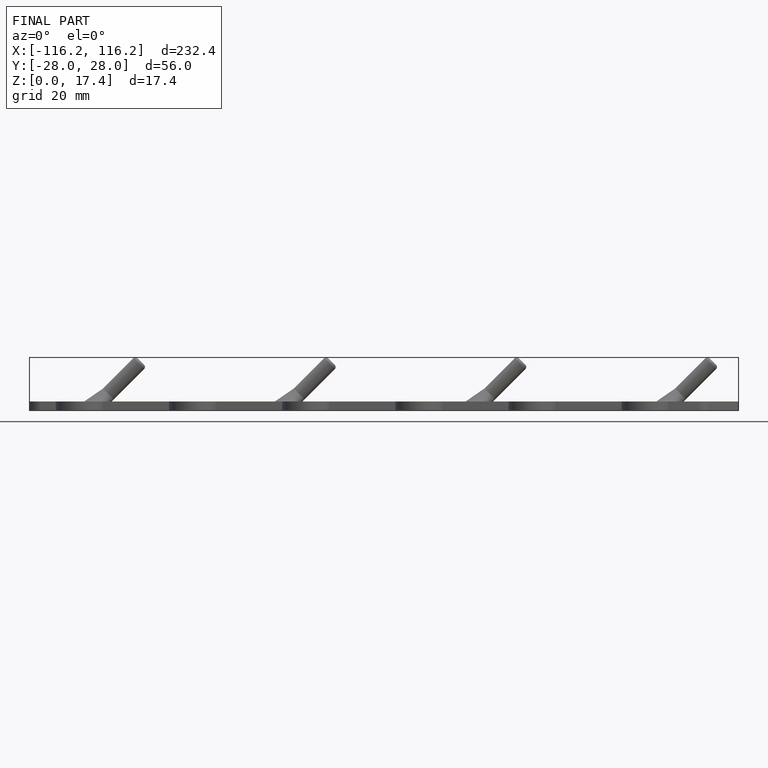
[diagram: finished part — front view with bounding-box wireframe]
